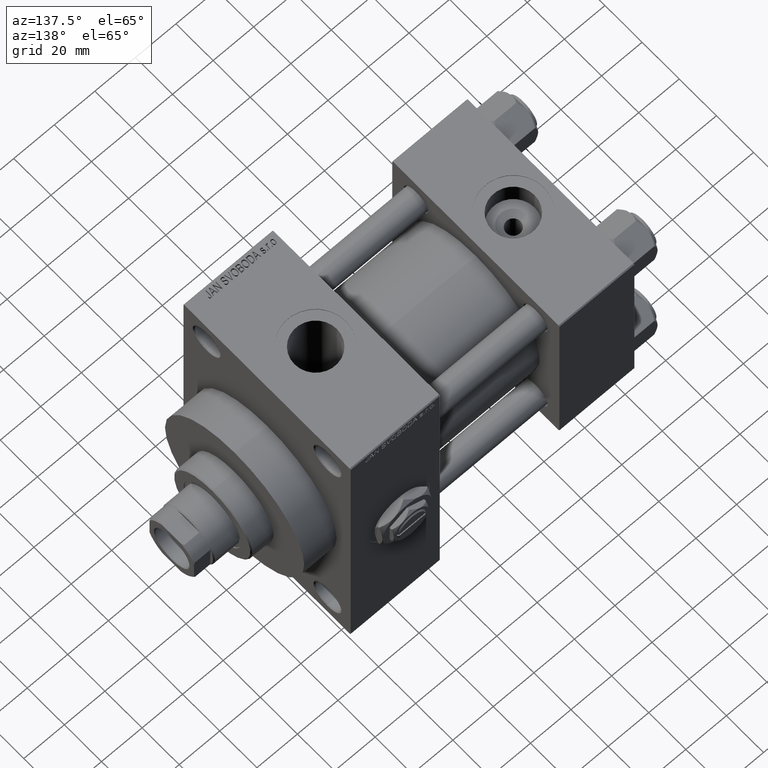
[diagram: clean part render]
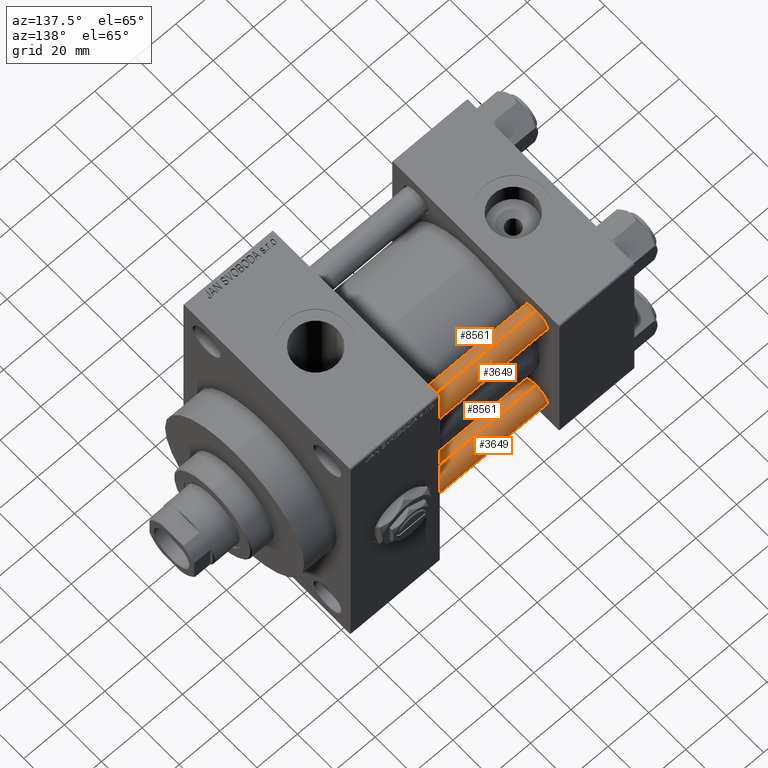
[diagram: same view with one multi-face feature highlighted, each face labeled with its STEP entity id]
A machine part, auxiliary view. The highlighted faces form ONE feature: a constant-radius fillet chain: 4 tangent blend faces with common blend radius 6 mm. The faces share edges in the B-rep.
Their STEP definitions:
[1] entity #3649 (Cylinder):
#438 = AXIS2_PLACEMENT_3D ( 'NONE', #12793, #23671, #27879 ) ;
#924 = CARTESIAN_POINT ( 'NONE',  ( 0.000000000000000000, 0.000000000000000000, 125.0000000000000000 ) ) ;
#1388 = ORIENTED_EDGE ( 'NONE', *, *, #45242, .T. ) ;
#3649 = ADVANCED_FACE ( 'NONE', ( #42261 ), #23429, .T. ) ;
#7021 = VERTEX_POINT ( 'NONE', #44601 ) ;
#8212 = DIRECTION ( 'NONE',  ( -0.000000000000000000, -0.000000000000000000, -1.000000000000000000 ) ) ;
#8294 = CARTESIAN_POINT ( 'NONE',  ( -6.000000000000000888, 0.000000000000000000, 124.5000000000000000 ) ) ;
#8706 = CARTESIAN_POINT ( 'NONE',  ( 6.000000000000000888, 7.347880794884120722E-16, 125.0000000000000000 ) ) ;
#8864 = DIRECTION ( 'NONE',  ( 1.000000000000000000, 0.000000000000000000, 0.000000000000000000 ) ) ;
#12305 = DIRECTION ( 'NONE',  ( -1.000000000000000000, 0.000000000000000000, 0.000000000000000000 ) ) ;
#12793 = CARTESIAN_POINT ( 'NONE',  ( 0.000000000000000000, 0.000000000000000000, 0.4999999999999865663 ) ) ;
#14237 = CARTESIAN_POINT ( 'NONE',  ( -6.000000000000000888, 0.000000000000000000, 0.4999999999999865663 ) ) ;
#15457 = EDGE_CURVE ( 'NONE', #37028, #26464, #33646, .T. ) ;
#17298 = LINE ( 'NONE', #8706, #42269 ) ;
#23429 = CYLINDRICAL_SURFACE ( 'NONE', #38437, 6.000000000000000888 ) ;
#23671 = DIRECTION ( 'NONE',  ( -0.000000000000000000, -0.000000000000000000, 1.000000000000000000 ) ) ;
#24327 = LINE ( 'NONE', #35958, #44367 ) ;
#24493 = EDGE_LOOP ( 'NONE', ( #1388, #27925, #48398, #30062 ) ) ;
#26464 = VERTEX_POINT ( 'NONE', #14237 ) ;
#27571 = DIRECTION ( 'NONE',  ( -0.000000000000000000, -0.000000000000000000, -1.000000000000000000 ) ) ;
#27665 = CARTESIAN_POINT ( 'NONE',  ( 0.000000000000000000, 0.000000000000000000, 124.5000000000000000 ) ) ;
#27797 = VERTEX_POINT ( 'NONE', #8294 ) ;
#27879 = DIRECTION ( 'NONE',  ( 1.000000000000000000, 0.000000000000000000, 0.000000000000000000 ) ) ;
#27925 = ORIENTED_EDGE ( 'NONE', *, *, #43021, .T. ) ;
#30062 = ORIENTED_EDGE ( 'NONE', *, *, #30472, .F. ) ;
#30472 = EDGE_CURVE ( 'NONE', #27797, #26464, #24327, .T. ) ;
#31100 = DIRECTION ( 'NONE',  ( -0.000000000000000000, -0.000000000000000000, -1.000000000000000000 ) ) ;
#32868 = CIRCLE ( 'NONE', #34414, 6.000000000000000888 ) ;
#33646 = CIRCLE ( 'NONE', #438, 6.000000000000000888 ) ;
#34414 = AXIS2_PLACEMENT_3D ( 'NONE', #27665, #42774, #8864 ) ;
#35958 = CARTESIAN_POINT ( 'NONE',  ( -6.000000000000000888, 0.000000000000000000, 125.0000000000000000 ) ) ;
#37028 = VERTEX_POINT ( 'NONE', #45689 ) ;
#38437 = AXIS2_PLACEMENT_3D ( 'NONE', #924, #31100, #12305 ) ;
#42261 = FACE_OUTER_BOUND ( 'NONE', #24493, .T. ) ;
#42269 = VECTOR ( 'NONE', #8212, 1000.000000000000000 ) ;
#42774 = DIRECTION ( 'NONE',  ( 0.000000000000000000, 0.000000000000000000, -1.000000000000000000 ) ) ;
#43021 = EDGE_CURVE ( 'NONE', #7021, #37028, #17298, .T. ) ;
#44367 = VECTOR ( 'NONE', #27571, 1000.000000000000000 ) ;
#44601 = CARTESIAN_POINT ( 'NONE',  ( 6.000000000000000888, 7.347880794884120722E-16, 124.5000000000000000 ) ) ;
#45242 = EDGE_CURVE ( 'NONE', #27797, #7021, #32868, .T. ) ;
#45689 = CARTESIAN_POINT ( 'NONE',  ( 6.000000000000000888, 7.347880794884120722E-16, 0.4999999999999865663 ) ) ;
#48398 = ORIENTED_EDGE ( 'NONE', *, *, #15457, .T. ) ;
[2] entity #8561 (Cylinder):
#6306 = AXIS2_PLACEMENT_3D ( 'NONE', #46927, #27619, #36268 ) ;
#7021 = VERTEX_POINT ( 'NONE', #44601 ) ;
#8167 = EDGE_CURVE ( 'NONE', #26464, #37028, #29915, .T. ) ;
#8212 = DIRECTION ( 'NONE',  ( -0.000000000000000000, -0.000000000000000000, -1.000000000000000000 ) ) ;
#8294 = CARTESIAN_POINT ( 'NONE',  ( -6.000000000000000888, 0.000000000000000000, 124.5000000000000000 ) ) ;
#8561 = ADVANCED_FACE ( 'NONE', ( #38313 ), #15558, .T. ) ;
#8706 = CARTESIAN_POINT ( 'NONE',  ( 6.000000000000000888, 7.347880794884120722E-16, 125.0000000000000000 ) ) ;
#9410 = AXIS2_PLACEMENT_3D ( 'NONE', #26939, #34129, #23210 ) ;
#11256 = EDGE_CURVE ( 'NONE', #7021, #27797, #29245, .T. ) ;
#12683 = CARTESIAN_POINT ( 'NONE',  ( 0.000000000000000000, 0.000000000000000000, 0.4999999999999865663 ) ) ;
#14237 = CARTESIAN_POINT ( 'NONE',  ( -6.000000000000000888, 0.000000000000000000, 0.4999999999999865663 ) ) ;
#15558 = CYLINDRICAL_SURFACE ( 'NONE', #9410, 6.000000000000000888 ) ;
#17129 = DIRECTION ( 'NONE',  ( 1.000000000000000000, 0.000000000000000000, 0.000000000000000000 ) ) ;
#17298 = LINE ( 'NONE', #8706, #42269 ) ;
#17523 = ORIENTED_EDGE ( 'NONE', *, *, #8167, .T. ) ;
#23210 = DIRECTION ( 'NONE',  ( -1.000000000000000000, 0.000000000000000000, 0.000000000000000000 ) ) ;
#23338 = ORIENTED_EDGE ( 'NONE', *, *, #43021, .F. ) ;
#24327 = LINE ( 'NONE', #35958, #44367 ) ;
#26464 = VERTEX_POINT ( 'NONE', #14237 ) ;
#26939 = CARTESIAN_POINT ( 'NONE',  ( 0.000000000000000000, 0.000000000000000000, 125.0000000000000000 ) ) ;
#27571 = DIRECTION ( 'NONE',  ( -0.000000000000000000, -0.000000000000000000, -1.000000000000000000 ) ) ;
#27619 = DIRECTION ( 'NONE',  ( 0.000000000000000000, 0.000000000000000000, -1.000000000000000000 ) ) ;
#27797 = VERTEX_POINT ( 'NONE', #8294 ) ;
#29245 = CIRCLE ( 'NONE', #6306, 6.000000000000000888 ) ;
#29915 = CIRCLE ( 'NONE', #36226, 6.000000000000000888 ) ;
#30472 = EDGE_CURVE ( 'NONE', #27797, #26464, #24327, .T. ) ;
#32471 = DIRECTION ( 'NONE',  ( -0.000000000000000000, -0.000000000000000000, 1.000000000000000000 ) ) ;
#33440 = ORIENTED_EDGE ( 'NONE', *, *, #30472, .T. ) ;
#34129 = DIRECTION ( 'NONE',  ( -0.000000000000000000, -0.000000000000000000, -1.000000000000000000 ) ) ;
#35958 = CARTESIAN_POINT ( 'NONE',  ( -6.000000000000000888, 0.000000000000000000, 125.0000000000000000 ) ) ;
#36226 = AXIS2_PLACEMENT_3D ( 'NONE', #12683, #32471, #17129 ) ;
#36268 = DIRECTION ( 'NONE',  ( 1.000000000000000000, 0.000000000000000000, 0.000000000000000000 ) ) ;
#37028 = VERTEX_POINT ( 'NONE', #45689 ) ;
#38313 = FACE_OUTER_BOUND ( 'NONE', #45804, .T. ) ;
#42269 = VECTOR ( 'NONE', #8212, 1000.000000000000000 ) ;
#43021 = EDGE_CURVE ( 'NONE', #7021, #37028, #17298, .T. ) ;
#44367 = VECTOR ( 'NONE', #27571, 1000.000000000000000 ) ;
#44601 = CARTESIAN_POINT ( 'NONE',  ( 6.000000000000000888, 7.347880794884120722E-16, 124.5000000000000000 ) ) ;
#45689 = CARTESIAN_POINT ( 'NONE',  ( 6.000000000000000888, 7.347880794884120722E-16, 0.4999999999999865663 ) ) ;
#45804 = EDGE_LOOP ( 'NONE', ( #23338, #46266, #33440, #17523 ) ) ;
#46266 = ORIENTED_EDGE ( 'NONE', *, *, #11256, .T. ) ;
#46927 = CARTESIAN_POINT ( 'NONE',  ( 0.000000000000000000, 0.000000000000000000, 124.5000000000000000 ) ) ;
[3] entity #3649 (Cylinder):
#438 = AXIS2_PLACEMENT_3D ( 'NONE', #12793, #23671, #27879 ) ;
#924 = CARTESIAN_POINT ( 'NONE',  ( 0.000000000000000000, 0.000000000000000000, 125.0000000000000000 ) ) ;
#1388 = ORIENTED_EDGE ( 'NONE', *, *, #45242, .T. ) ;
#3649 = ADVANCED_FACE ( 'NONE', ( #42261 ), #23429, .T. ) ;
#7021 = VERTEX_POINT ( 'NONE', #44601 ) ;
#8212 = DIRECTION ( 'NONE',  ( -0.000000000000000000, -0.000000000000000000, -1.000000000000000000 ) ) ;
#8294 = CARTESIAN_POINT ( 'NONE',  ( -6.000000000000000888, 0.000000000000000000, 124.5000000000000000 ) ) ;
#8706 = CARTESIAN_POINT ( 'NONE',  ( 6.000000000000000888, 7.347880794884120722E-16, 125.0000000000000000 ) ) ;
#8864 = DIRECTION ( 'NONE',  ( 1.000000000000000000, 0.000000000000000000, 0.000000000000000000 ) ) ;
#12305 = DIRECTION ( 'NONE',  ( -1.000000000000000000, 0.000000000000000000, 0.000000000000000000 ) ) ;
#12793 = CARTESIAN_POINT ( 'NONE',  ( 0.000000000000000000, 0.000000000000000000, 0.4999999999999865663 ) ) ;
#14237 = CARTESIAN_POINT ( 'NONE',  ( -6.000000000000000888, 0.000000000000000000, 0.4999999999999865663 ) ) ;
#15457 = EDGE_CURVE ( 'NONE', #37028, #26464, #33646, .T. ) ;
#17298 = LINE ( 'NONE', #8706, #42269 ) ;
#23429 = CYLINDRICAL_SURFACE ( 'NONE', #38437, 6.000000000000000888 ) ;
#23671 = DIRECTION ( 'NONE',  ( -0.000000000000000000, -0.000000000000000000, 1.000000000000000000 ) ) ;
#24327 = LINE ( 'NONE', #35958, #44367 ) ;
#24493 = EDGE_LOOP ( 'NONE', ( #1388, #27925, #48398, #30062 ) ) ;
#26464 = VERTEX_POINT ( 'NONE', #14237 ) ;
#27571 = DIRECTION ( 'NONE',  ( -0.000000000000000000, -0.000000000000000000, -1.000000000000000000 ) ) ;
#27665 = CARTESIAN_POINT ( 'NONE',  ( 0.000000000000000000, 0.000000000000000000, 124.5000000000000000 ) ) ;
#27797 = VERTEX_POINT ( 'NONE', #8294 ) ;
#27879 = DIRECTION ( 'NONE',  ( 1.000000000000000000, 0.000000000000000000, 0.000000000000000000 ) ) ;
#27925 = ORIENTED_EDGE ( 'NONE', *, *, #43021, .T. ) ;
#30062 = ORIENTED_EDGE ( 'NONE', *, *, #30472, .F. ) ;
#30472 = EDGE_CURVE ( 'NONE', #27797, #26464, #24327, .T. ) ;
#31100 = DIRECTION ( 'NONE',  ( -0.000000000000000000, -0.000000000000000000, -1.000000000000000000 ) ) ;
#32868 = CIRCLE ( 'NONE', #34414, 6.000000000000000888 ) ;
#33646 = CIRCLE ( 'NONE', #438, 6.000000000000000888 ) ;
#34414 = AXIS2_PLACEMENT_3D ( 'NONE', #27665, #42774, #8864 ) ;
#35958 = CARTESIAN_POINT ( 'NONE',  ( -6.000000000000000888, 0.000000000000000000, 125.0000000000000000 ) ) ;
#37028 = VERTEX_POINT ( 'NONE', #45689 ) ;
#38437 = AXIS2_PLACEMENT_3D ( 'NONE', #924, #31100, #12305 ) ;
#42261 = FACE_OUTER_BOUND ( 'NONE', #24493, .T. ) ;
#42269 = VECTOR ( 'NONE', #8212, 1000.000000000000000 ) ;
#42774 = DIRECTION ( 'NONE',  ( 0.000000000000000000, 0.000000000000000000, -1.000000000000000000 ) ) ;
#43021 = EDGE_CURVE ( 'NONE', #7021, #37028, #17298, .T. ) ;
#44367 = VECTOR ( 'NONE', #27571, 1000.000000000000000 ) ;
#44601 = CARTESIAN_POINT ( 'NONE',  ( 6.000000000000000888, 7.347880794884120722E-16, 124.5000000000000000 ) ) ;
#45242 = EDGE_CURVE ( 'NONE', #27797, #7021, #32868, .T. ) ;
#45689 = CARTESIAN_POINT ( 'NONE',  ( 6.000000000000000888, 7.347880794884120722E-16, 0.4999999999999865663 ) ) ;
#48398 = ORIENTED_EDGE ( 'NONE', *, *, #15457, .T. ) ;
[4] entity #8561 (Cylinder):
#6306 = AXIS2_PLACEMENT_3D ( 'NONE', #46927, #27619, #36268 ) ;
#7021 = VERTEX_POINT ( 'NONE', #44601 ) ;
#8167 = EDGE_CURVE ( 'NONE', #26464, #37028, #29915, .T. ) ;
#8212 = DIRECTION ( 'NONE',  ( -0.000000000000000000, -0.000000000000000000, -1.000000000000000000 ) ) ;
#8294 = CARTESIAN_POINT ( 'NONE',  ( -6.000000000000000888, 0.000000000000000000, 124.5000000000000000 ) ) ;
#8561 = ADVANCED_FACE ( 'NONE', ( #38313 ), #15558, .T. ) ;
#8706 = CARTESIAN_POINT ( 'NONE',  ( 6.000000000000000888, 7.347880794884120722E-16, 125.0000000000000000 ) ) ;
#9410 = AXIS2_PLACEMENT_3D ( 'NONE', #26939, #34129, #23210 ) ;
#11256 = EDGE_CURVE ( 'NONE', #7021, #27797, #29245, .T. ) ;
#12683 = CARTESIAN_POINT ( 'NONE',  ( 0.000000000000000000, 0.000000000000000000, 0.4999999999999865663 ) ) ;
#14237 = CARTESIAN_POINT ( 'NONE',  ( -6.000000000000000888, 0.000000000000000000, 0.4999999999999865663 ) ) ;
#15558 = CYLINDRICAL_SURFACE ( 'NONE', #9410, 6.000000000000000888 ) ;
#17129 = DIRECTION ( 'NONE',  ( 1.000000000000000000, 0.000000000000000000, 0.000000000000000000 ) ) ;
#17298 = LINE ( 'NONE', #8706, #42269 ) ;
#17523 = ORIENTED_EDGE ( 'NONE', *, *, #8167, .T. ) ;
#23210 = DIRECTION ( 'NONE',  ( -1.000000000000000000, 0.000000000000000000, 0.000000000000000000 ) ) ;
#23338 = ORIENTED_EDGE ( 'NONE', *, *, #43021, .F. ) ;
#24327 = LINE ( 'NONE', #35958, #44367 ) ;
#26464 = VERTEX_POINT ( 'NONE', #14237 ) ;
#26939 = CARTESIAN_POINT ( 'NONE',  ( 0.000000000000000000, 0.000000000000000000, 125.0000000000000000 ) ) ;
#27571 = DIRECTION ( 'NONE',  ( -0.000000000000000000, -0.000000000000000000, -1.000000000000000000 ) ) ;
#27619 = DIRECTION ( 'NONE',  ( 0.000000000000000000, 0.000000000000000000, -1.000000000000000000 ) ) ;
#27797 = VERTEX_POINT ( 'NONE', #8294 ) ;
#29245 = CIRCLE ( 'NONE', #6306, 6.000000000000000888 ) ;
#29915 = CIRCLE ( 'NONE', #36226, 6.000000000000000888 ) ;
#30472 = EDGE_CURVE ( 'NONE', #27797, #26464, #24327, .T. ) ;
#32471 = DIRECTION ( 'NONE',  ( -0.000000000000000000, -0.000000000000000000, 1.000000000000000000 ) ) ;
#33440 = ORIENTED_EDGE ( 'NONE', *, *, #30472, .T. ) ;
#34129 = DIRECTION ( 'NONE',  ( -0.000000000000000000, -0.000000000000000000, -1.000000000000000000 ) ) ;
#35958 = CARTESIAN_POINT ( 'NONE',  ( -6.000000000000000888, 0.000000000000000000, 125.0000000000000000 ) ) ;
#36226 = AXIS2_PLACEMENT_3D ( 'NONE', #12683, #32471, #17129 ) ;
#36268 = DIRECTION ( 'NONE',  ( 1.000000000000000000, 0.000000000000000000, 0.000000000000000000 ) ) ;
#37028 = VERTEX_POINT ( 'NONE', #45689 ) ;
#38313 = FACE_OUTER_BOUND ( 'NONE', #45804, .T. ) ;
#42269 = VECTOR ( 'NONE', #8212, 1000.000000000000000 ) ;
#43021 = EDGE_CURVE ( 'NONE', #7021, #37028, #17298, .T. ) ;
#44367 = VECTOR ( 'NONE', #27571, 1000.000000000000000 ) ;
#44601 = CARTESIAN_POINT ( 'NONE',  ( 6.000000000000000888, 7.347880794884120722E-16, 124.5000000000000000 ) ) ;
#45689 = CARTESIAN_POINT ( 'NONE',  ( 6.000000000000000888, 7.347880794884120722E-16, 0.4999999999999865663 ) ) ;
#45804 = EDGE_LOOP ( 'NONE', ( #23338, #46266, #33440, #17523 ) ) ;
#46266 = ORIENTED_EDGE ( 'NONE', *, *, #11256, .T. ) ;
#46927 = CARTESIAN_POINT ( 'NONE',  ( 0.000000000000000000, 0.000000000000000000, 124.5000000000000000 ) ) ;